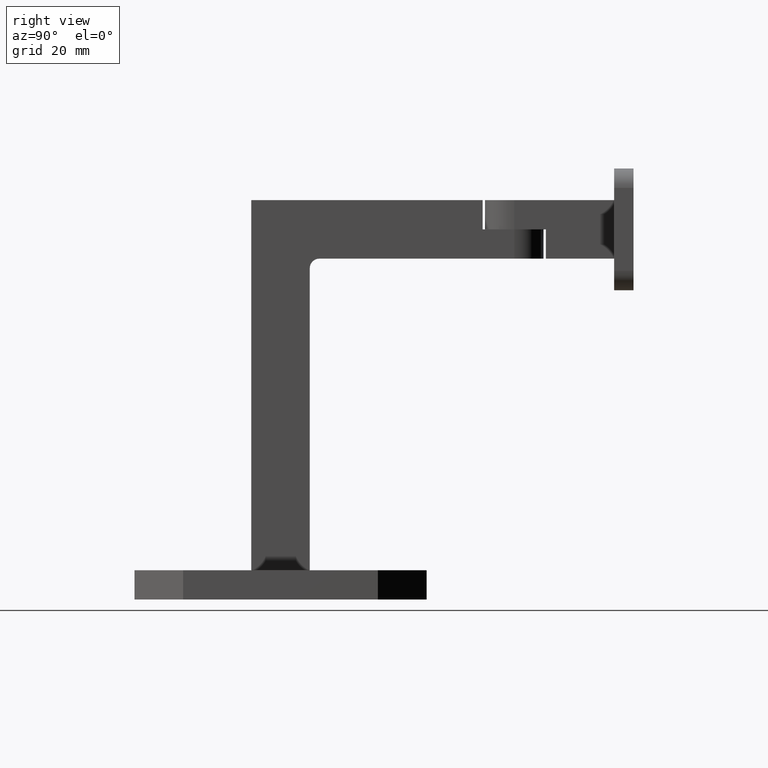
[diagram: clean part render]
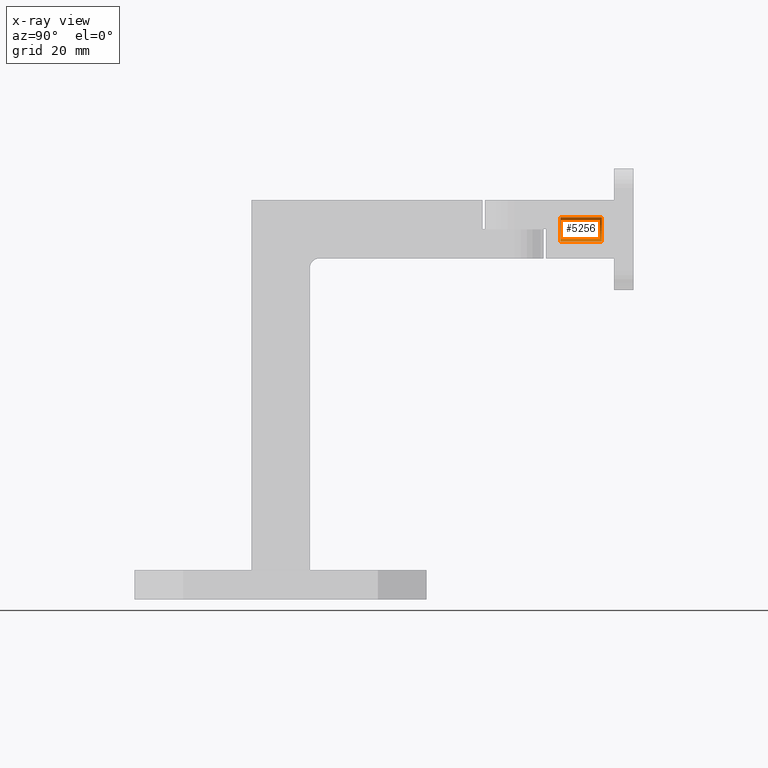
[diagram: x-ray — body ghosted, one internal face saturated and labeled with its STEP entity id]
A machine part, right view, then the same camera in x-ray: the body is ghosted and one INTERNAL B-rep face — a face not visible from any outside direction — is saturated and labeled: STEP entity #5256.
In plain terms, the highlighted cylindrical surface (edge-blend (fillet) strip) has radius 2.5 mm, axis along (0, 1, 0).
Its self-contained STEP definition (entity closure, byte-faithful):
#870 = CYLINDRICAL_SURFACE ( 'NONE', #20999, 2.499999999999997780 ) ;
#1208 = CARTESIAN_POINT ( 'NONE',  ( 0.000000000000000000, 13.24999999999999822, 0.000000000000000000 ) ) ;
#1877 = CARTESIAN_POINT ( 'NONE',  ( 3.061616997868380676E-16, 13.24999999999999822, -2.499999999999997780 ) ) ;
#2650 = EDGE_CURVE ( 'NONE', #6405, #15735, #6054, .T. ) ;
#3376 = ORIENTED_EDGE ( 'NONE', *, *, #2650, .F. ) ;
#3538 = DIRECTION ( 'NONE',  ( 0.000000000000000000, -1.000000000000000000, 0.000000000000000000 ) ) ;
#3596 = EDGE_CURVE ( 'NONE', #6405, #14239, #22510, .T. ) ;
#3623 = CARTESIAN_POINT ( 'NONE',  ( 0.000000000000000000, 10.74999999999999645, 0.000000000000000000 ) ) ;
#3787 = DIRECTION ( 'NONE',  ( -0.000000000000000000, 1.000000000000000000, -0.000000000000000000 ) ) ;
#4606 = ORIENTED_EDGE ( 'NONE', *, *, #3596, .T. ) ;
#5043 = DIRECTION ( 'NONE',  ( 0.000000000000000000, 0.000000000000000000, 1.000000000000000000 ) ) ;
#5256 = ADVANCED_FACE ( 'NONE', ( #6271 ), #870, .F. ) ;
#5419 = CARTESIAN_POINT ( 'NONE',  ( 0.000000000000000000, 13.24999999999999822, 2.499999999999997780 ) ) ;
#6054 = CIRCLE ( 'NONE', #22859, 2.499999999999996891 ) ;
#6271 = FACE_OUTER_BOUND ( 'NONE', #11770, .T. ) ;
#6405 = VERTEX_POINT ( 'NONE', #8054 ) ;
#8054 = CARTESIAN_POINT ( 'NONE',  ( 3.061616997868380183E-16, 2.250000000000001776, -2.499999999999996891 ) ) ;
#9923 = EDGE_CURVE ( 'NONE', #15735, #17921, #16850, .T. ) ;
#10737 = DIRECTION ( 'NONE',  ( -0.000000000000000000, 1.000000000000000000, -0.000000000000000000 ) ) ;
#11770 = EDGE_LOOP ( 'NONE', ( #3376, #4606, #23057, #14689 ) ) ;
#14239 = VERTEX_POINT ( 'NONE', #15084 ) ;
#14689 = ORIENTED_EDGE ( 'NONE', *, *, #9923, .F. ) ;
#15084 = CARTESIAN_POINT ( 'NONE',  ( 4.592425496802572986E-16, 10.74999999999999645, -2.499999999999997780 ) ) ;
#15411 = EDGE_CURVE ( 'NONE', #17921, #14239, #23890, .T. ) ;
#15735 = VERTEX_POINT ( 'NONE', #19125 ) ;
#16850 = LINE ( 'NONE', #5419, #24616 ) ;
#16944 = CARTESIAN_POINT ( 'NONE',  ( 0.000000000000000000, 10.74999999999999645, 2.499999999999997780 ) ) ;
#17265 = DIRECTION ( 'NONE',  ( -0.000000000000000000, 1.000000000000000000, -0.000000000000000000 ) ) ;
#17921 = VERTEX_POINT ( 'NONE', #16944 ) ;
#19125 = CARTESIAN_POINT ( 'NONE',  ( 0.000000000000000000, 2.250000000000001776, 2.499999999999996891 ) ) ;
#19972 = AXIS2_PLACEMENT_3D ( 'NONE', #3623, #3538, #22638 ) ;
#20806 = CARTESIAN_POINT ( 'NONE',  ( 0.000000000000000000, 2.250000000000001776, 0.000000000000000000 ) ) ;
#20999 = AXIS2_PLACEMENT_3D ( 'NONE', #1208, #10737, #5043 ) ;
#22510 = LINE ( 'NONE', #1877, #23997 ) ;
#22638 = DIRECTION ( 'NONE',  ( 0.000000000000000000, 0.000000000000000000, 1.000000000000000000 ) ) ;
#22859 = AXIS2_PLACEMENT_3D ( 'NONE', #20806, #23315, #23150 ) ;
#23057 = ORIENTED_EDGE ( 'NONE', *, *, #15411, .F. ) ;
#23150 = DIRECTION ( 'NONE',  ( 0.000000000000000000, 0.000000000000000000, 1.000000000000000000 ) ) ;
#23315 = DIRECTION ( 'NONE',  ( -0.000000000000000000, 1.000000000000000000, -0.000000000000000000 ) ) ;
#23890 = CIRCLE ( 'NONE', #19972, 2.499999999999997780 ) ;
#23997 = VECTOR ( 'NONE', #3787, 1000.000000000000000 ) ;
#24616 = VECTOR ( 'NONE', #17265, 1000.000000000000000 ) ;